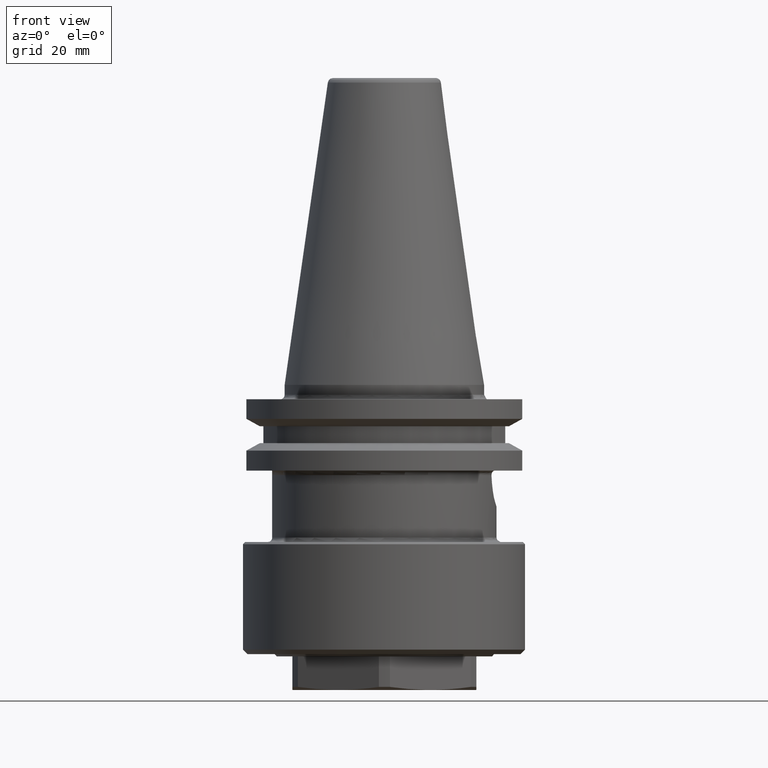
[diagram: clean part render]
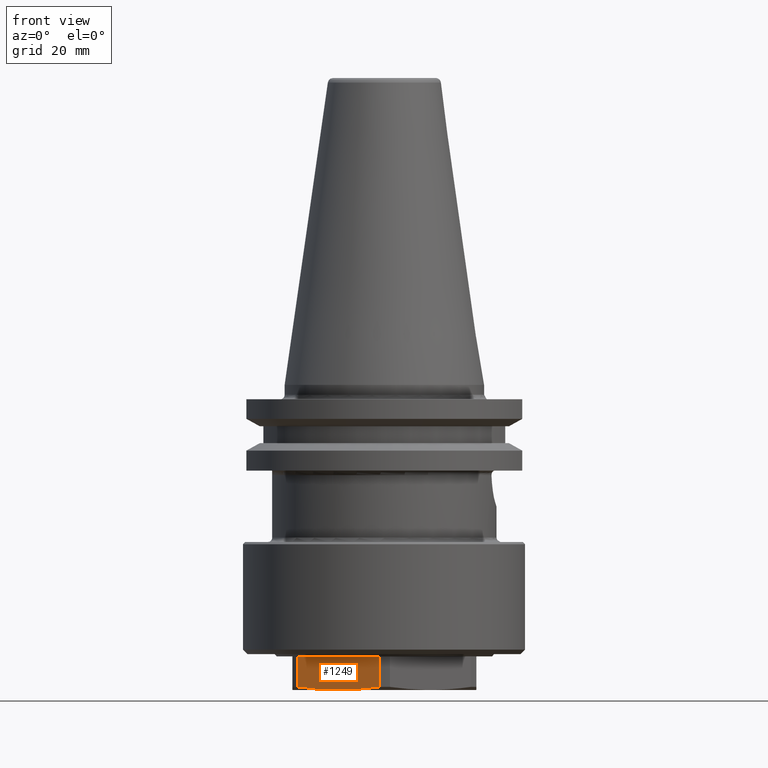
[diagram: same view with one face highlighted and labeled with its STEP entity id]
A machine part, front view. The second image highlights one B-rep face of the part: STEP entity #1249.
In plain terms, the highlighted planar face has unit normal (-0.5, -0.866, 0).
Its self-contained STEP definition (entity closure, byte-faithful):
#62=LINE('',#1923,#145);
#63=LINE('',#1925,#146);
#64=LINE('',#1927,#147);
#145=VECTOR('',#1528,1000.);
#146=VECTOR('',#1531,1000.);
#147=VECTOR('',#1532,1000.);
#218=B_SPLINE_CURVE_WITH_KNOTS('',3,(#1859,#1860,#1861,#1862,#1863),
 .UNSPECIFIED.,.F.,.F.,(4,1,4),(1.64612767975673E-6,0.0104299729349868,
0.0208582997422939),.UNSPECIFIED.);
#312=ORIENTED_EDGE('',*,*,#662,.T.);
#313=ORIENTED_EDGE('',*,*,#637,.T.);
#314=ORIENTED_EDGE('',*,*,#661,.T.);
#315=ORIENTED_EDGE('',*,*,#663,.F.);
#637=EDGE_CURVE('',#821,#820,#218,.T.);
#661=EDGE_CURVE('',#820,#836,#62,.F.);
#662=EDGE_CURVE('',#837,#821,#63,.T.);
#663=EDGE_CURVE('',#837,#836,#64,.T.);
#820=VERTEX_POINT('',#1858);
#821=VERTEX_POINT('',#1864);
#836=VERTEX_POINT('',#1922);
#837=VERTEX_POINT('',#1926);
#1018=EDGE_LOOP('',(#312,#313,#314,#315));
#1117=FACE_BOUND('',#1018,.T.);
#1209=PLANE('',#1352);
#1249=ADVANCED_FACE('',(#1117),#1209,.T.);
#1352=AXIS2_PLACEMENT_3D('',#1924,#1529,#1530);
#1528=DIRECTION('',(2.55102676732492E-17,-4.69423988459088E-17,-1.));
#1529=DIRECTION('',(-0.5,-0.866025403784439,8.60008401555608E-16));
#1530=DIRECTION('',(0.866025403784439,-0.5,-3.33291854577708E-16));
#1531=DIRECTION('',(2.55102676732492E-17,-4.69423988459088E-17,-1.));
#1532=DIRECTION('',(0.866025403784439,-0.5,-3.33291854577708E-16));
#1858=CARTESIAN_POINT('',(-1.21880406590579,-22.9676841812345,-67.3));
#1859=CARTESIAN_POINT('',(-19.2811959340942,-12.5393573739275,-67.3));
#1860=CARTESIAN_POINT('',(-16.2707972893962,-14.277411841812,-67.7223112272012));
#1861=CARTESIAN_POINT('',(-10.25,-17.7535207775811,-68.2174347349544));
#1862=CARTESIAN_POINT('',(-4.2292027106039,-21.2296297133501,-67.7223112272012));
#1863=CARTESIAN_POINT('',(-1.21880406590583,-22.9676841812346,-67.3));
#1864=CARTESIAN_POINT('',(-19.2811959340942,-12.5393573739275,-67.3));
#1922=CARTESIAN_POINT('',(-1.21880406590579,-22.9676841812345,-60.5));
#1923=CARTESIAN_POINT('',(-1.21880406590579,-22.9676841812345,-67.));
#1924=CARTESIAN_POINT('',(1.87612563256824E-15,-23.6713610367747,14.4704525852056));
#1925=CARTESIAN_POINT('',(-19.2811959340942,-12.5393573739275,-67.));
#1926=CARTESIAN_POINT('',(-19.2811959340942,-12.5393573739275,-60.5));
#1927=CARTESIAN_POINT('',(0.142304845413261,-23.753520777581,-60.5));